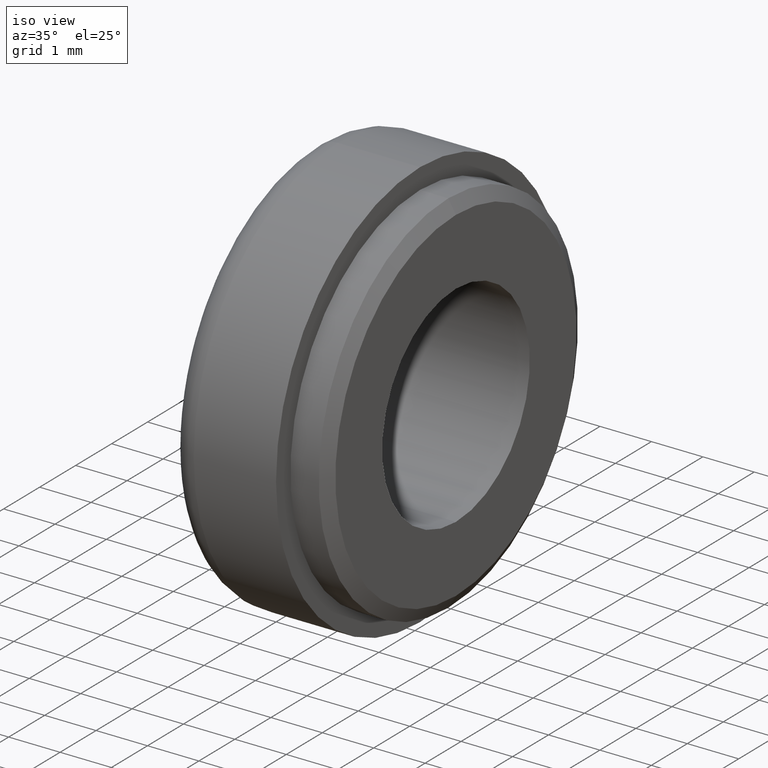
[diagram: clean part render]
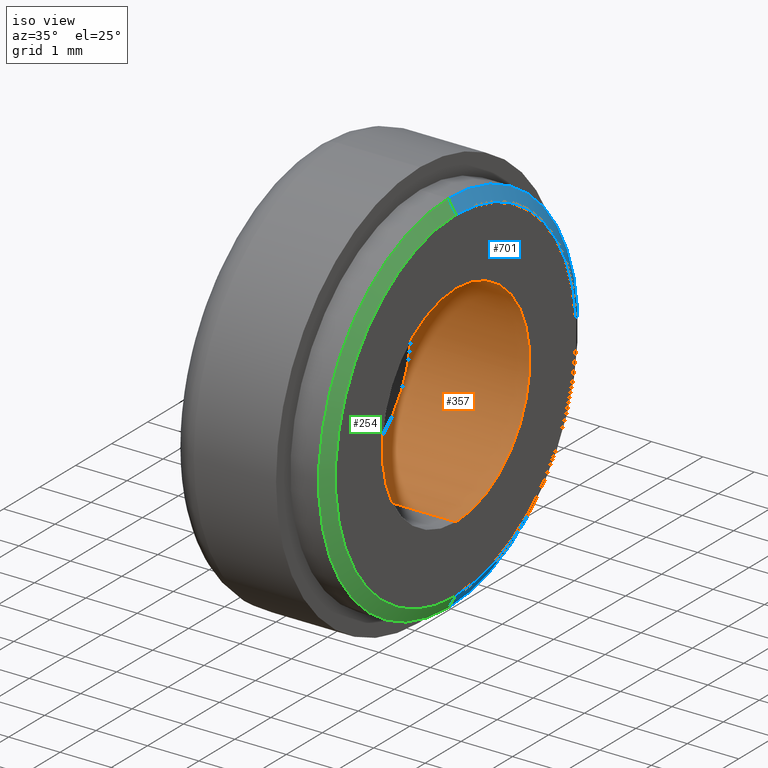
[diagram: same view with three faces highlighted in distinct colors, each labeled with its STEP entity id]
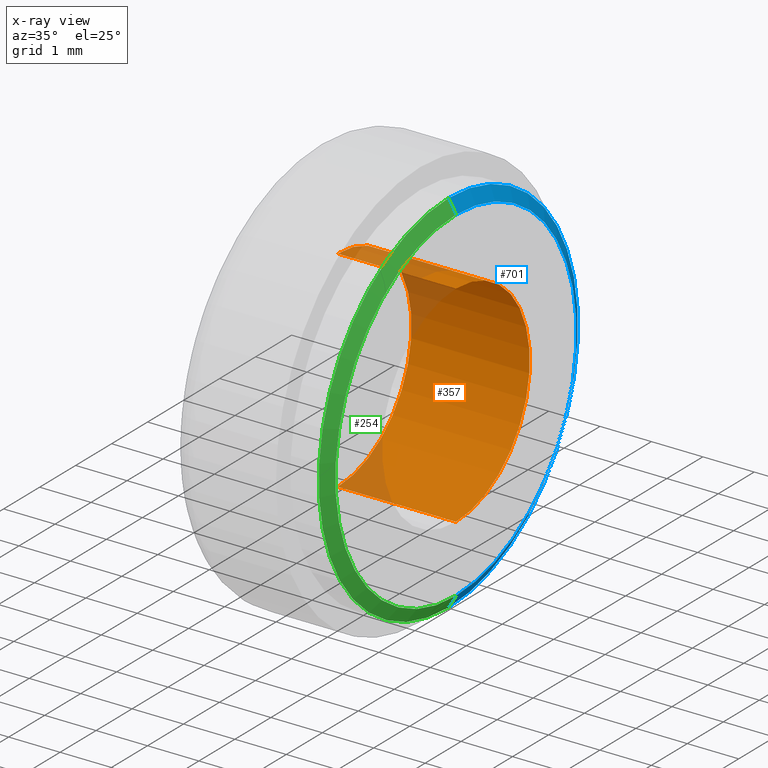
[diagram: x-ray of the same camera — body ghosted, the three highlighted faces saturated]
A machine part, iso view with three faces highlighted in distinct colors.
The next image is the same camera in x-ray (body ghosted, the three faces saturated) — at least one of them is partly hidden behind the body in this view.
Their STEP definitions:

[orange] entity #357 — the highlighted cylindrical surface (partial cylindrical patch) has radius 2.05 mm, axis along (-1, -0, -0).
#34 = CARTESIAN_POINT ( 'NONE',  ( 2.299999999999996300, 0.0000000000000000000, 2.049999999999999400 ) ) ;
#42 = CYLINDRICAL_SURFACE ( 'NONE', #330, 2.049999999999999800 ) ;
#48 = VECTOR ( 'NONE', #188, 1000.000000000000000 ) ;
#53 = CIRCLE ( 'NONE', #705, 2.049999999999999800 ) ;
#67 = DIRECTION ( 'NONE',  ( -1.000000000000000000, -0.0000000000000000000, -0.0000000000000000000 ) ) ;
#114 = DIRECTION ( 'NONE',  ( -1.000000000000000000, -0.0000000000000000000, -0.0000000000000000000 ) ) ;
#117 = DIRECTION ( 'NONE',  ( -1.000000000000000000, -0.0000000000000000000, -0.0000000000000000000 ) ) ;
#126 = DIRECTION ( 'NONE',  ( 0.0000000000000000000, 0.0000000000000000000, 1.000000000000000000 ) ) ;
#156 = VERTEX_POINT ( 'NONE', #34 ) ;
#173 = AXIS2_PLACEMENT_3D ( 'NONE', #351, #67, #546 ) ;
#188 = DIRECTION ( 'NONE',  ( -1.000000000000000000, -0.0000000000000000000, -0.0000000000000000000 ) ) ;
#193 = ORIENTED_EDGE ( 'NONE', *, *, #458, .T. ) ;
#223 = LINE ( 'NONE', #662, #352 ) ;
#318 = VERTEX_POINT ( 'NONE', #515 ) ;
#330 = AXIS2_PLACEMENT_3D ( 'NONE', #724, #117, #688 ) ;
#340 = EDGE_LOOP ( 'NONE', ( #442, #700, #193, #427 ) ) ;
#351 = CARTESIAN_POINT ( 'NONE',  ( 2.299999999999996300, 0.0000000000000000000, 0.0000000000000000000 ) ) ;
#352 = VECTOR ( 'NONE', #114, 1000.000000000000000 ) ;
#357 = ADVANCED_FACE ( 'NONE', ( #557 ), #42, .F. ) ;
#366 = VERTEX_POINT ( 'NONE', #558 ) ;
#372 = EDGE_CURVE ( 'NONE', #318, #536, #53, .T. ) ;
#392 = CARTESIAN_POINT ( 'NONE',  ( 0.0000000000000000000, 2.510525938252073700E-016, -2.049999999999999800 ) ) ;
#427 = ORIENTED_EDGE ( 'NONE', *, *, #372, .T. ) ;
#428 = CARTESIAN_POINT ( 'NONE',  ( -88.98999999999999500, 2.510525938252073700E-016, -2.049999999999999800 ) ) ;
#442 = ORIENTED_EDGE ( 'NONE', *, *, #577, .F. ) ;
#455 = DIRECTION ( 'NONE',  ( -1.000000000000000000, -0.0000000000000000000, -0.0000000000000000000 ) ) ;
#458 = EDGE_CURVE ( 'NONE', #156, #318, #223, .T. ) ;
#466 = EDGE_CURVE ( 'NONE', #156, #366, #492, .T. ) ;
#492 = CIRCLE ( 'NONE', #173, 2.049999999999999400 ) ;
#515 = CARTESIAN_POINT ( 'NONE',  ( 0.0000000000000000000, 0.0000000000000000000, 2.049999999999999800 ) ) ;
#536 = VERTEX_POINT ( 'NONE', #392 ) ;
#546 = DIRECTION ( 'NONE',  ( 0.0000000000000000000, 0.0000000000000000000, 1.000000000000000000 ) ) ;
#557 = FACE_OUTER_BOUND ( 'NONE', #340, .T. ) ;
#558 = CARTESIAN_POINT ( 'NONE',  ( 2.299999999999996300, 2.510525938252073200E-016, -2.049999999999999400 ) ) ;
#577 = EDGE_CURVE ( 'NONE', #366, #536, #608, .T. ) ;
#608 = LINE ( 'NONE', #428, #48 ) ;
#662 = CARTESIAN_POINT ( 'NONE',  ( -88.98999999999999500, 0.0000000000000000000, 2.049999999999999800 ) ) ;
#682 = CARTESIAN_POINT ( 'NONE',  ( 0.0000000000000000000, 0.0000000000000000000, 0.0000000000000000000 ) ) ;
#688 = DIRECTION ( 'NONE',  ( 0.0000000000000000000, 0.0000000000000000000, 1.000000000000000000 ) ) ;
#700 = ORIENTED_EDGE ( 'NONE', *, *, #466, .F. ) ;
#705 = AXIS2_PLACEMENT_3D ( 'NONE', #682, #455, #126 ) ;
#724 = CARTESIAN_POINT ( 'NONE',  ( -88.98999999999999500, 0.0000000000000000000, 0.0000000000000000000 ) ) ;

[blue] entity #701 — the highlighted conical surface has half-angle 59.036 deg.
#44 = DIRECTION ( 'NONE',  ( 0.0000000000000000000, 0.0000000000000000000, 1.000000000000000000 ) ) ;
#74 = DIRECTION ( 'NONE',  ( -0.5144957554275202400, 1.050125966765370800E-016, -0.8574929257125478700 ) ) ;
#104 = CARTESIAN_POINT ( 'NONE',  ( 2.299999999999996300, 0.0000000000000000000, 0.0000000000000000000 ) ) ;
#124 = CARTESIAN_POINT ( 'NONE',  ( 2.149999999999999000, 4.408728476930471200E-016, -3.600000000000000100 ) ) ;
#175 = DIRECTION ( 'NONE',  ( 0.0000000000000000000, 0.0000000000000000000, 1.000000000000000000 ) ) ;
#176 = DIRECTION ( 'NONE',  ( -0.5144957554275202400, 0.0000000000000000000, 0.8574929257125478700 ) ) ;
#185 = CARTESIAN_POINT ( 'NONE',  ( 2.299999999999996300, 4.255647627037052200E-016, -3.350000000000000100 ) ) ;
#203 = EDGE_CURVE ( 'NONE', #470, #731, #270, .T. ) ;
#204 = AXIS2_PLACEMENT_3D ( 'NONE', #104, #615, #44 ) ;
#209 = EDGE_LOOP ( 'NONE', ( #580, #364, #638, #247 ) ) ;
#216 = CONICAL_SURFACE ( 'NONE', #242, 3.350000000000000100, 1.030376826524319800 ) ;
#230 = DIRECTION ( 'NONE',  ( -1.000000000000000000, -0.0000000000000000000, -0.0000000000000000000 ) ) ;
#242 = AXIS2_PLACEMENT_3D ( 'NONE', #689, #230, #685 ) ;
#247 = ORIENTED_EDGE ( 'NONE', *, *, #298, .F. ) ;
#270 = LINE ( 'NONE', #544, #382 ) ;
#283 = CARTESIAN_POINT ( 'NONE',  ( 2.299999999999996300, 0.0000000000000000000, 3.350000000000000100 ) ) ;
#298 = EDGE_CURVE ( 'NONE', #619, #683, #530, .T. ) ;
#301 = CIRCLE ( 'NONE', #501, 3.600000000000000100 ) ;
#364 = ORIENTED_EDGE ( 'NONE', *, *, #203, .T. ) ;
#376 = VECTOR ( 'NONE', #176, 1000.000000000000100 ) ;
#378 = CIRCLE ( 'NONE', #204, 3.350000000000000100 ) ;
#382 = VECTOR ( 'NONE', #74, 1000.000000000000100 ) ;
#394 = FACE_OUTER_BOUND ( 'NONE', #209, .T. ) ;
#402 = CARTESIAN_POINT ( 'NONE',  ( 2.299999999999996300, 0.0000000000000000000, 3.350000000000000100 ) ) ;
#470 = VERTEX_POINT ( 'NONE', #185 ) ;
#501 = AXIS2_PLACEMENT_3D ( 'NONE', #559, #671, #175 ) ;
#530 = LINE ( 'NONE', #402, #376 ) ;
#544 = CARTESIAN_POINT ( 'NONE',  ( 2.299999999999996300, 4.102566777143633300E-016, -3.350000000000000100 ) ) ;
#559 = CARTESIAN_POINT ( 'NONE',  ( 2.149999999999999000, 0.0000000000000000000, 0.0000000000000000000 ) ) ;
#565 = EDGE_CURVE ( 'NONE', #683, #731, #301, .T. ) ;
#580 = ORIENTED_EDGE ( 'NONE', *, *, #696, .T. ) ;
#615 = DIRECTION ( 'NONE',  ( -1.000000000000000000, -0.0000000000000000000, -0.0000000000000000000 ) ) ;
#619 = VERTEX_POINT ( 'NONE', #283 ) ;
#638 = ORIENTED_EDGE ( 'NONE', *, *, #565, .F. ) ;
#671 = DIRECTION ( 'NONE',  ( -1.000000000000000000, -0.0000000000000000000, -0.0000000000000000000 ) ) ;
#678 = CARTESIAN_POINT ( 'NONE',  ( 2.149999999999999000, 0.0000000000000000000, 3.600000000000000100 ) ) ;
#683 = VERTEX_POINT ( 'NONE', #678 ) ;
#685 = DIRECTION ( 'NONE',  ( 0.0000000000000000000, 0.0000000000000000000, 1.000000000000000000 ) ) ;
#689 = CARTESIAN_POINT ( 'NONE',  ( 2.299999999999996300, 0.0000000000000000000, 0.0000000000000000000 ) ) ;
#696 = EDGE_CURVE ( 'NONE', #619, #470, #378, .T. ) ;
#701 = ADVANCED_FACE ( 'NONE', ( #394 ), #216, .T. ) ;
#731 = VERTEX_POINT ( 'NONE', #124 ) ;

[green] entity #254 — the highlighted conical surface has half-angle 59.036 deg.
#6 = AXIS2_PLACEMENT_3D ( 'NONE', #441, #499, #617 ) ;
#49 = CARTESIAN_POINT ( 'NONE',  ( 2.149999999999999000, 0.0000000000000000000, 0.0000000000000000000 ) ) ;
#55 = CONICAL_SURFACE ( 'NONE', #6, 3.350000000000000100, 1.030376826524319800 ) ;
#58 = DIRECTION ( 'NONE',  ( -1.000000000000000000, -0.0000000000000000000, -0.0000000000000000000 ) ) ;
#74 = DIRECTION ( 'NONE',  ( -0.5144957554275202400, 1.050125966765370800E-016, -0.8574929257125478700 ) ) ;
#116 = AXIS2_PLACEMENT_3D ( 'NONE', #49, #58, #388 ) ;
#122 = EDGE_CURVE ( 'NONE', #470, #619, #303, .T. ) ;
#124 = CARTESIAN_POINT ( 'NONE',  ( 2.149999999999999000, 4.408728476930471200E-016, -3.600000000000000100 ) ) ;
#169 = EDGE_CURVE ( 'NONE', #731, #683, #248, .T. ) ;
#176 = DIRECTION ( 'NONE',  ( -0.5144957554275202400, 0.0000000000000000000, 0.8574929257125478700 ) ) ;
#181 = ORIENTED_EDGE ( 'NONE', *, *, #122, .T. ) ;
#185 = CARTESIAN_POINT ( 'NONE',  ( 2.299999999999996300, 4.255647627037052200E-016, -3.350000000000000100 ) ) ;
#200 = AXIS2_PLACEMENT_3D ( 'NONE', #306, #699, #729 ) ;
#203 = EDGE_CURVE ( 'NONE', #470, #731, #270, .T. ) ;
#246 = ORIENTED_EDGE ( 'NONE', *, *, #298, .T. ) ;
#248 = CIRCLE ( 'NONE', #116, 3.600000000000000100 ) ;
#254 = ADVANCED_FACE ( 'NONE', ( #672 ), #55, .T. ) ;
#270 = LINE ( 'NONE', #544, #382 ) ;
#283 = CARTESIAN_POINT ( 'NONE',  ( 2.299999999999996300, 0.0000000000000000000, 3.350000000000000100 ) ) ;
#298 = EDGE_CURVE ( 'NONE', #619, #683, #530, .T. ) ;
#303 = CIRCLE ( 'NONE', #200, 3.350000000000000100 ) ;
#306 = CARTESIAN_POINT ( 'NONE',  ( 2.299999999999996300, 0.0000000000000000000, 0.0000000000000000000 ) ) ;
#307 = EDGE_LOOP ( 'NONE', ( #665, #181, #246, #308 ) ) ;
#308 = ORIENTED_EDGE ( 'NONE', *, *, #169, .F. ) ;
#376 = VECTOR ( 'NONE', #176, 1000.000000000000100 ) ;
#382 = VECTOR ( 'NONE', #74, 1000.000000000000100 ) ;
#388 = DIRECTION ( 'NONE',  ( 0.0000000000000000000, 0.0000000000000000000, 1.000000000000000000 ) ) ;
#402 = CARTESIAN_POINT ( 'NONE',  ( 2.299999999999996300, 0.0000000000000000000, 3.350000000000000100 ) ) ;
#441 = CARTESIAN_POINT ( 'NONE',  ( 2.299999999999996300, 0.0000000000000000000, 0.0000000000000000000 ) ) ;
#470 = VERTEX_POINT ( 'NONE', #185 ) ;
#499 = DIRECTION ( 'NONE',  ( -1.000000000000000000, -0.0000000000000000000, -0.0000000000000000000 ) ) ;
#530 = LINE ( 'NONE', #402, #376 ) ;
#544 = CARTESIAN_POINT ( 'NONE',  ( 2.299999999999996300, 4.102566777143633300E-016, -3.350000000000000100 ) ) ;
#617 = DIRECTION ( 'NONE',  ( 0.0000000000000000000, 0.0000000000000000000, 1.000000000000000000 ) ) ;
#619 = VERTEX_POINT ( 'NONE', #283 ) ;
#665 = ORIENTED_EDGE ( 'NONE', *, *, #203, .F. ) ;
#672 = FACE_OUTER_BOUND ( 'NONE', #307, .T. ) ;
#678 = CARTESIAN_POINT ( 'NONE',  ( 2.149999999999999000, 0.0000000000000000000, 3.600000000000000100 ) ) ;
#683 = VERTEX_POINT ( 'NONE', #678 ) ;
#699 = DIRECTION ( 'NONE',  ( -1.000000000000000000, -0.0000000000000000000, -0.0000000000000000000 ) ) ;
#729 = DIRECTION ( 'NONE',  ( 0.0000000000000000000, 0.0000000000000000000, 1.000000000000000000 ) ) ;
#731 = VERTEX_POINT ( 'NONE', #124 ) ;